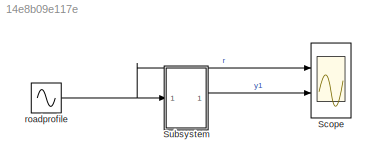
MODEL slx_14e8b09e117e
KIND model
CONFIG AbsTol = auto
CONFIG EnableMultiTasking = off
CONFIG FixedStep = auto
CONFIG MaxStep = 0.01
CONFIG MinStep = auto
CONFIG RelTol = 1e-3
CONFIG SampleTimeConstraint = Unconstrained
CONFIG SolverName = VariableStepAuto
CONFIG StartTime = 0.0
CONFIG StopTime = 100
BLOCK [Scope] Scope
  Floating = off
  NumInputPorts = 2
  Ports = [2]
  ScopeSpecificationString = Simulink.scopes.TimeScopeBlockCfg('CurrentConfiguration', extmgr.ConfigurationSet(extmgr.Configuration('Core','General UI',true),extmgr.Configuration('Core','Source UI',true),extmgr.Configuration('Sources','WiredSimulink',true),extmgr.Configuration('Visuals','Time Domain',true,'SerializedDisplays',{struct('MinYLimReal','-1.25','MaxYLimReal','1.25','YLabelReal','','MinYLimMag','0.00000','MaxYLimMag...<+2022ch>
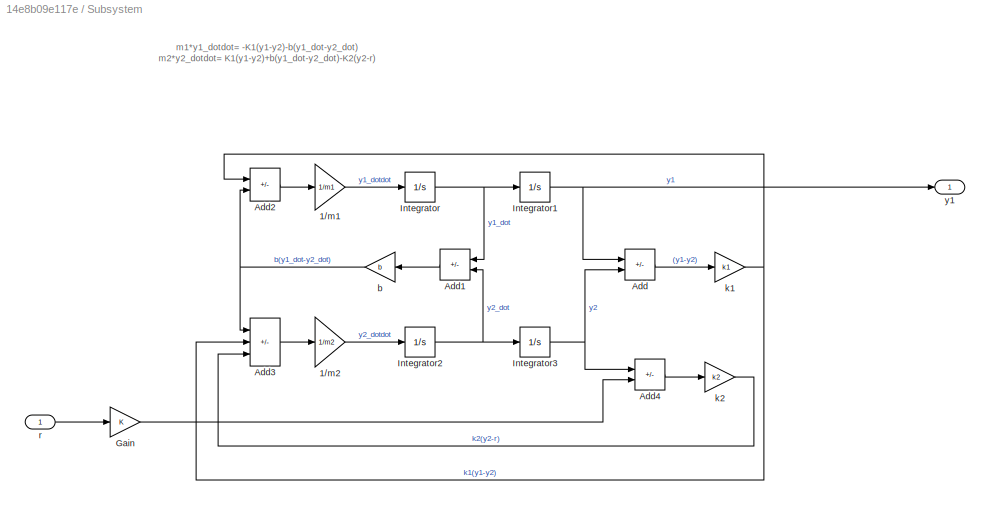
BLOCK [SubSystem] Subsystem
  Ports = [1, 1]
  RequestExecContextInheritance = off
BLOCK [Gain] Subsystem/1//m1
  Gain = 1/m1
BLOCK [Gain] Subsystem/1//m2
  Gain = 1/m2
BLOCK [Sum] Subsystem/Add
  IconShape = rectangular
  Inputs = +-
  Ports = [2, 1]
BLOCK [Sum] Subsystem/Add1
  IconShape = rectangular
  Inputs = +-
  Ports = [2, 1]
BLOCK [Sum] Subsystem/Add2
  IconShape = rectangular
  Inputs = --
  Ports = [2, 1]
BLOCK [Sum] Subsystem/Add3
  IconShape = rectangular
  Inputs = ++-
  Ports = [3, 1]
BLOCK [Sum] Subsystem/Add4
  IconShape = rectangular
  Inputs = +-
  Ports = [2, 1]
BLOCK [Gain] Subsystem/Gain
  Gain = K
BLOCK [Integrator] Subsystem/Integrator
  Ports = [1, 1]
BLOCK [Integrator] Subsystem/Integrator1
  Ports = [1, 1]
BLOCK [Integrator] Subsystem/Integrator2
  Ports = [1, 1]
BLOCK [Integrator] Subsystem/Integrator3
  Ports = [1, 1]
BLOCK [Gain] Subsystem/b
  Gain = b
BLOCK [Gain] Subsystem/k1
  Gain = k1
BLOCK [Gain] Subsystem/k2
  Gain = k2
BLOCK [Inport] Subsystem/r
BLOCK [Outport] Subsystem/y1
BLOCK [Sin] roadprofile
  Frequency = 10
  Ports = [0, 1]
  SampleTime = 0
ANNOTATION Subsystem: m1*y1_dotdot= -K1(y1-y2)-b(y1_dot-y2_dot) m2*y2_dotdot= K1(y1-y2)+b(y1_dot-y2_dot)-K2(y2-r)
LINE Subsystem/1//m1:1 -> Subsystem/Integrator:1
LINE Subsystem/1//m2:1 -> Subsystem/Integrator2:1
LINE Subsystem/Add1:1 -> Subsystem/b:1
LINE Subsystem/Add2:1 -> Subsystem/1//m1:1
LINE Subsystem/Add3:1 -> Subsystem/1//m2:1
LINE Subsystem/Add4:1 -> Subsystem/k2:1
LINE Subsystem/Add:1 -> Subsystem/k1:1
LINE Subsystem/Gain:1 -> Subsystem/Add4:2
NET Subsystem/Integrator1:1 -> Subsystem/Add:1, Subsystem/y1:1
NET Subsystem/Integrator2:1 -> Subsystem/Add1:2, Subsystem/Integrator3:1
NET Subsystem/Integrator3:1 -> Subsystem/Add4:1, Subsystem/Add:2
NET Subsystem/Integrator:1 -> Subsystem/Add1:1, Subsystem/Integrator1:1
NET Subsystem/b:1 -> Subsystem/Add2:2, Subsystem/Add3:1
NET Subsystem/k1:1 -> Subsystem/Add2:1, Subsystem/Add3:2
LINE Subsystem/k2:1 -> Subsystem/Add3:3
LINE Subsystem/r:1 -> Subsystem/Gain:1
LINE Subsystem:1 -> Scope:2
NET roadprofile:1 -> Scope:1, Subsystem:1
note: NET lines group one-source signal fan-out (src -> all destinations, sorted); 1:1 wires keep LINE
